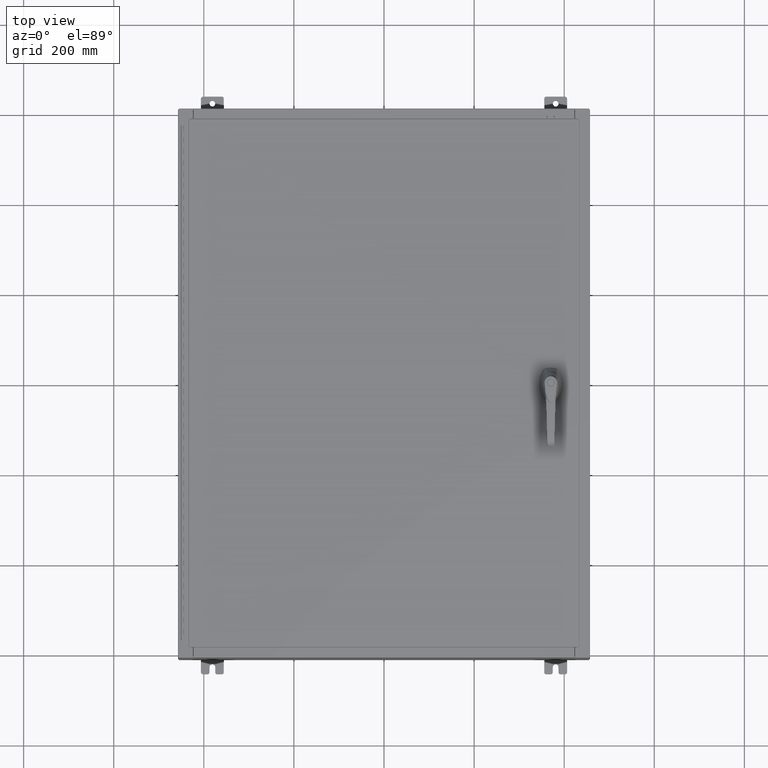
[diagram: clean part render]
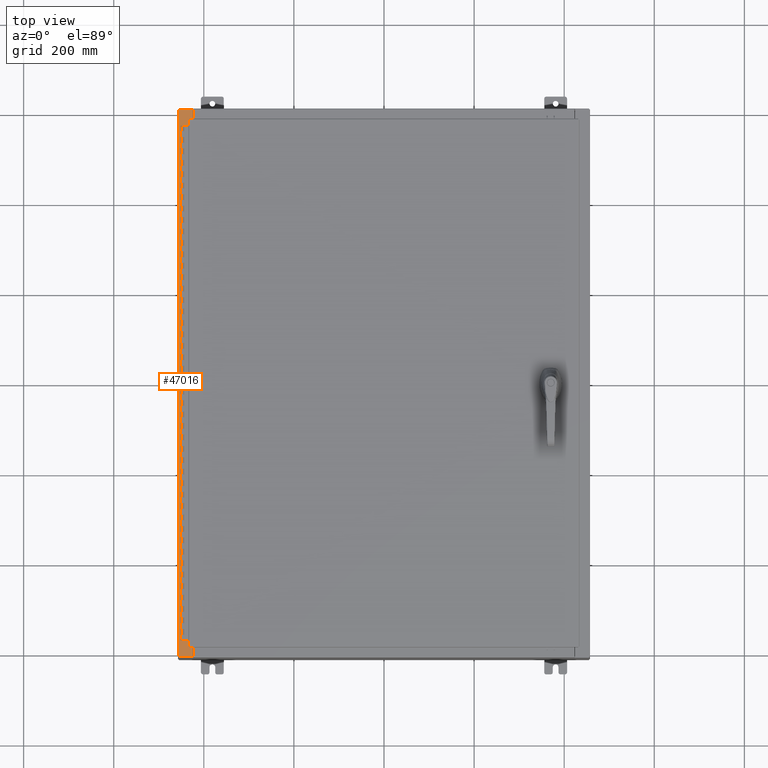
[diagram: same view with one face highlighted and labeled with its STEP entity id]
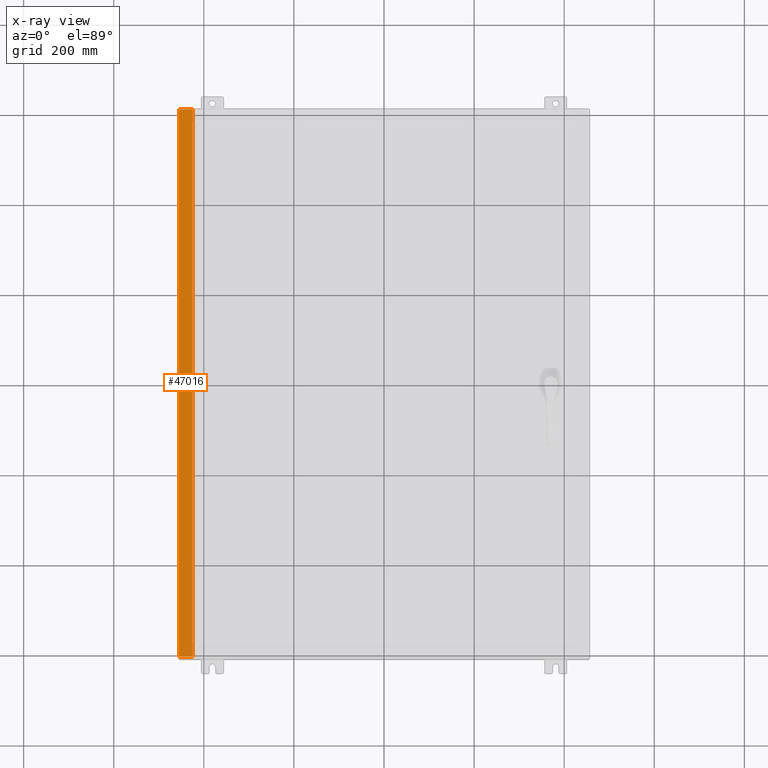
[diagram: x-ray of the same camera — body ghosted, the highlighted face saturated]
A machine part, top view. The second image highlights one B-rep face of the part: STEP entity #47016.
The next image is the same camera in x-ray: the body ghosted, the highlighted face saturated — about 0% of this face is hidden behind the body in this view.
In plain terms, the highlighted planar face has unit normal (0, 0, -1).
Its self-contained STEP definition (entity closure, byte-faithful):
#4405 = DIRECTION ( 'NONE',  ( 1.000000000000000000, 0.0000000000000000000, 0.0000000000000000000 ) ) ;
#5253 = VECTOR ( 'NONE', #25770, 39.37007874015748100 ) ;
#6184 = CARTESIAN_POINT ( 'NONE',  ( -17.91230000000004500, 23.92529999999998900, 11.92530000000000400 ) ) ;
#6338 = ORIENTED_EDGE ( 'NONE', *, *, #63733, .T. ) ;
#7284 = LINE ( 'NONE', #53384, #86848 ) ;
#8169 = DIRECTION ( 'NONE',  ( 7.132762385546384700E-015, 0.0000000000000000000, -1.000000000000000000 ) ) ;
#9542 = VERTEX_POINT ( 'NONE', #34922 ) ;
#11951 = CARTESIAN_POINT ( 'NONE',  ( -1.706478848838254600E-013, -23.92530000000005300, 11.92530000000013000 ) ) ;
#16363 = VECTOR ( 'NONE', #32711, 39.37007874015748100 ) ;
#22001 = AXIS2_PLACEMENT_3D ( 'NONE', #70340, #8169, #80792 ) ;
#22802 = DIRECTION ( 'NONE',  ( 1.000000000000000000, 0.0000000000000000000, -4.340572780400098900E-014 ) ) ;
#22939 = ORIENTED_EDGE ( 'NONE', *, *, #110620, .F. ) ;
#24134 = EDGE_CURVE ( 'NONE', #25868, #27380, #102922, .T. ) ;
#24305 = CARTESIAN_POINT ( 'NONE',  ( -16.69970000000004600, 0.0000000000000000000, 11.92530000000000900 ) ) ;
#24425 = LINE ( 'NONE', #24305, #73088 ) ;
#25536 = CARTESIAN_POINT ( 'NONE',  ( -16.71270000000004800, 22.59374999999999300, 11.92530000000001200 ) ) ;
#25583 = FACE_OUTER_BOUND ( 'NONE', #68440, .T. ) ;
#25770 = DIRECTION ( 'NONE',  ( -1.000000000000000000, 0.0000000000000000000, 4.340572780400098900E-014 ) ) ;
#25868 = VERTEX_POINT ( 'NONE', #119037 ) ;
#26186 = EDGE_CURVE ( 'NONE', #49481, #28298, #83178, .T. ) ;
#27380 = VERTEX_POINT ( 'NONE', #6184 ) ;
#28298 = VERTEX_POINT ( 'NONE', #80585 ) ;
#28597 = PLANE ( 'NONE',  #22001 ) ;
#29882 = VERTEX_POINT ( 'NONE', #117707 ) ;
#32711 = DIRECTION ( 'NONE',  ( -0.0000000000000000000, -1.000000000000000000, -0.0000000000000000000 ) ) ;
#33236 = CARTESIAN_POINT ( 'NONE',  ( -16.75005000000004800, -22.63109999999998200, 11.92530000000001200 ) ) ;
#34888 = VECTOR ( 'NONE', #49254, 39.37007874015748100 ) ;
#34922 = CARTESIAN_POINT ( 'NONE',  ( -16.75005000000004800, 22.59374999999999300, 11.92530000000000900 ) ) ;
#35883 = VERTEX_POINT ( 'NONE', #25536 ) ;
#35888 = ORIENTED_EDGE ( 'NONE', *, *, #50054, .F. ) ;
#39688 = EDGE_CURVE ( 'NONE', #35883, #49481, #95891, .T. ) ;
#42197 = EDGE_CURVE ( 'NONE', #55950, #118618, #84829, .T. ) ;
#42491 = DIRECTION ( 'NONE',  ( 1.000000000000000000, 0.0000000000000000000, 0.0000000000000000000 ) ) ;
#46734 = VECTOR ( 'NONE', #22802, 39.37007874015748100 ) ;
#47016 = ADVANCED_FACE ( 'NONE', ( #25583 ), #28597, .F. ) ;
#49254 = DIRECTION ( 'NONE',  ( 0.0000000000000000000, 1.000000000000000000, 0.0000000000000000000 ) ) ;
#49481 = VERTEX_POINT ( 'NONE', #100493 ) ;
#49955 = LINE ( 'NONE', #33236, #46734 ) ;
#50054 = EDGE_CURVE ( 'NONE', #28298, #29882, #82156, .T. ) ;
#50105 = CARTESIAN_POINT ( 'NONE',  ( -16.69970000000004600, -23.92529999999998600, 11.92530000000000900 ) ) ;
#50757 = ORIENTED_EDGE ( 'NONE', *, *, #120684, .F. ) ;
#50978 = VECTOR ( 'NONE', #110889, 39.37007874015748100 ) ;
#53384 = CARTESIAN_POINT ( 'NONE',  ( -17.91230000000004500, 23.92529999999998900, 11.92530000000000400 ) ) ;
#55829 = CARTESIAN_POINT ( 'NONE',  ( -16.69970000000004600, -22.63109999999998600, 11.92530000000000900 ) ) ;
#55950 = VERTEX_POINT ( 'NONE', #104182 ) ;
#56628 = CARTESIAN_POINT ( 'NONE',  ( -16.69970000000004600, 22.63109999999999300, 11.92530000000000900 ) ) ;
#58430 = ORIENTED_EDGE ( 'NONE', *, *, #24134, .T. ) ;
#61955 = DIRECTION ( 'NONE',  ( -7.132762385546384700E-015, -0.0000000000000000000, 1.000000000000000000 ) ) ;
#63733 = EDGE_CURVE ( 'NONE', #134509, #121268, #90068, .T. ) ;
#63840 = DIRECTION ( 'NONE',  ( -0.0000000000000000000, 1.000000000000000000, -0.0000000000000000000 ) ) ;
#64959 = ORIENTED_EDGE ( 'NONE', *, *, #39688, .F. ) ;
#66496 = EDGE_CURVE ( 'NONE', #118618, #9542, #122037, .T. ) ;
#66590 = DIRECTION ( 'NONE',  ( -7.132762385546384700E-015, -0.0000000000000000000, 1.000000000000000000 ) ) ;
#67295 = VERTEX_POINT ( 'NONE', #130622 ) ;
#68440 = EDGE_LOOP ( 'NONE', ( #75542, #104449, #58430, #105829, #112586, #6338, #50757, #35888, #81551, #64959, #22939, #120774 ) ) ;
#70340 = CARTESIAN_POINT ( 'NONE',  ( -8.532114493236880700E-014, 0.0000000000000000000, 11.92530000000013000 ) ) ;
#73088 = VECTOR ( 'NONE', #126775, 39.37007874015748100 ) ;
#73787 = VECTOR ( 'NONE', #84530, 39.37007874015748100 ) ;
#75542 = ORIENTED_EDGE ( 'NONE', *, *, #42197, .F. ) ;
#80585 = CARTESIAN_POINT ( 'NONE',  ( -16.75005000000004800, -22.59374999999998200, 11.92530000000000900 ) ) ;
#80634 = AXIS2_PLACEMENT_3D ( 'NONE', #124049, #61955, #134474 ) ;
#80680 = DIRECTION ( 'NONE',  ( -1.000000000000000000, 0.0000000000000000000, 0.0000000000000000000 ) ) ;
#80792 = DIRECTION ( 'NONE',  ( -1.000000000000000000, 0.0000000000000000000, -7.132762385546384700E-015 ) ) ;
#80942 = EDGE_CURVE ( 'NONE', #55950, #25868, #24425, .T. ) ;
#81551 = ORIENTED_EDGE ( 'NONE', *, *, #26186, .F. ) ;
#82156 = CIRCLE ( 'NONE', #103082, 0.01867499999999949400 ) ;
#83178 = LINE ( 'NONE', #104520, #131747 ) ;
#84530 = DIRECTION ( 'NONE',  ( 1.000000000000000000, -3.566381192773192400E-015, 7.132762385546384700E-015 ) ) ;
#84829 = LINE ( 'NONE', #56628, #5253 ) ;
#86848 = VECTOR ( 'NONE', #63840, 39.37007874015748100 ) ;
#90068 = LINE ( 'NONE', #90533, #34888 ) ;
#90533 = CARTESIAN_POINT ( 'NONE',  ( -16.69970000000004600, 0.0000000000000000000, 11.92530000000000900 ) ) ;
#94838 = CARTESIAN_POINT ( 'NONE',  ( -16.71270000000004800, 22.59374999999999300, 11.92530000000001200 ) ) ;
#95891 = LINE ( 'NONE', #94838, #16363 ) ;
#99396 = LINE ( 'NONE', #115018, #126952 ) ;
#100493 = CARTESIAN_POINT ( 'NONE',  ( -16.71270000000004800, -22.59374999999998200, 11.92530000000001200 ) ) ;
#101373 = LINE ( 'NONE', #11951, #73787 ) ;
#102922 = LINE ( 'NONE', #112682, #50978 ) ;
#103082 = AXIS2_PLACEMENT_3D ( 'NONE', #128664, #66590, #4405 ) ;
#104182 = CARTESIAN_POINT ( 'NONE',  ( -16.69970000000004600, 22.63109999999999300, 11.92530000000000900 ) ) ;
#104449 = ORIENTED_EDGE ( 'NONE', *, *, #80942, .T. ) ;
#104520 = CARTESIAN_POINT ( 'NONE',  ( -16.71270000000004800, -22.59374999999998200, 11.92530000000001200 ) ) ;
#105829 = ORIENTED_EDGE ( 'NONE', *, *, #124723, .F. ) ;
#110620 = EDGE_CURVE ( 'NONE', #9542, #35883, #99396, .T. ) ;
#110889 = DIRECTION ( 'NONE',  ( -1.000000000000000000, 0.0000000000000000000, -7.132762385546384700E-015 ) ) ;
#112564 = CARTESIAN_POINT ( 'NONE',  ( -16.75005000000004800, 22.63109999999999300, 11.92530000000000900 ) ) ;
#112586 = ORIENTED_EDGE ( 'NONE', *, *, #134347, .T. ) ;
#112682 = CARTESIAN_POINT ( 'NONE',  ( -8.532114493236880700E-014, 23.92529999999998900, 11.92530000000013000 ) ) ;
#115018 = CARTESIAN_POINT ( 'NONE',  ( -16.75005000000004800, 22.59374999999999300, 11.92530000000001200 ) ) ;
#117707 = CARTESIAN_POINT ( 'NONE',  ( -16.75005000000004800, -22.63109999999998200, 11.92530000000000900 ) ) ;
#118618 = VERTEX_POINT ( 'NONE', #112564 ) ;
#119037 = CARTESIAN_POINT ( 'NONE',  ( -16.69970000000004600, 23.92529999999998900, 11.92530000000000900 ) ) ;
#120684 = EDGE_CURVE ( 'NONE', #29882, #121268, #49955, .T. ) ;
#120774 = ORIENTED_EDGE ( 'NONE', *, *, #66496, .F. ) ;
#121268 = VERTEX_POINT ( 'NONE', #55829 ) ;
#122037 = CIRCLE ( 'NONE', #80634, 0.01867499999999949400 ) ;
#124049 = CARTESIAN_POINT ( 'NONE',  ( -16.75005000000004800, 22.61242499999999100, 11.92530000000001200 ) ) ;
#124723 = EDGE_CURVE ( 'NONE', #67295, #27380, #7284, .T. ) ;
#126775 = DIRECTION ( 'NONE',  ( 0.0000000000000000000, 1.000000000000000000, 0.0000000000000000000 ) ) ;
#126952 = VECTOR ( 'NONE', #42491, 39.37007874015748100 ) ;
#128664 = CARTESIAN_POINT ( 'NONE',  ( -16.75005000000004800, -22.61242499999998400, 11.92530000000001200 ) ) ;
#130622 = CARTESIAN_POINT ( 'NONE',  ( -17.91230000000004500, -23.92529999999998600, 11.92530000000000400 ) ) ;
#131747 = VECTOR ( 'NONE', #80680, 39.37007874015748100 ) ;
#134347 = EDGE_CURVE ( 'NONE', #67295, #134509, #101373, .T. ) ;
#134474 = DIRECTION ( 'NONE',  ( 1.000000000000000000, 0.0000000000000000000, 0.0000000000000000000 ) ) ;
#134509 = VERTEX_POINT ( 'NONE', #50105 ) ;